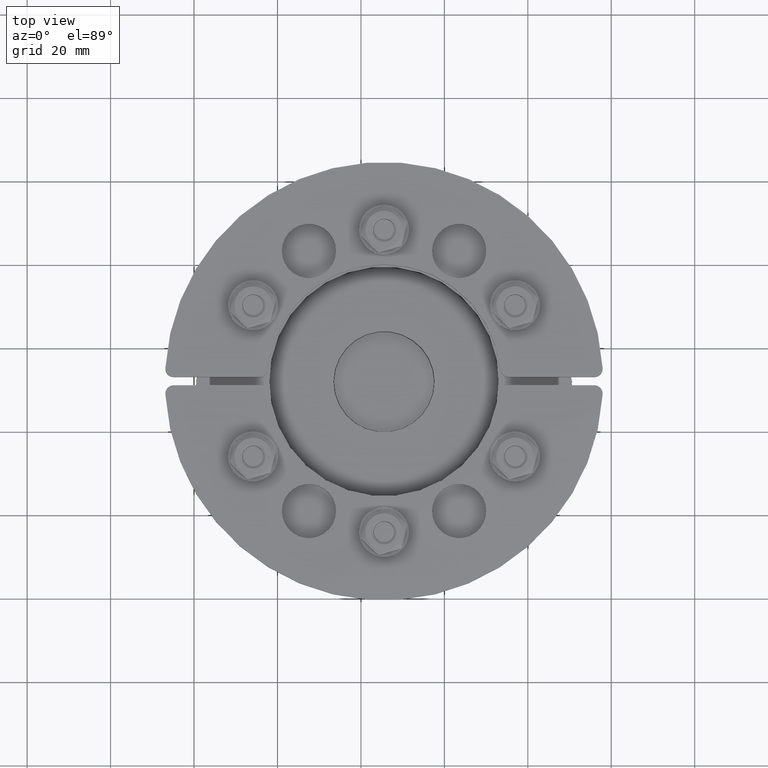
[diagram: clean part render]
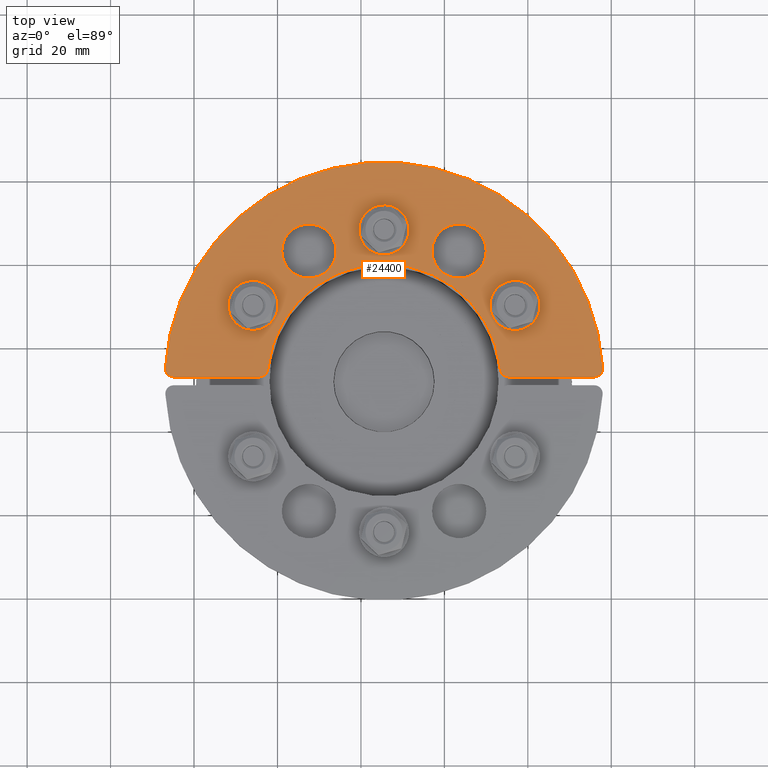
[diagram: same view with one face highlighted and labeled with its STEP entity id]
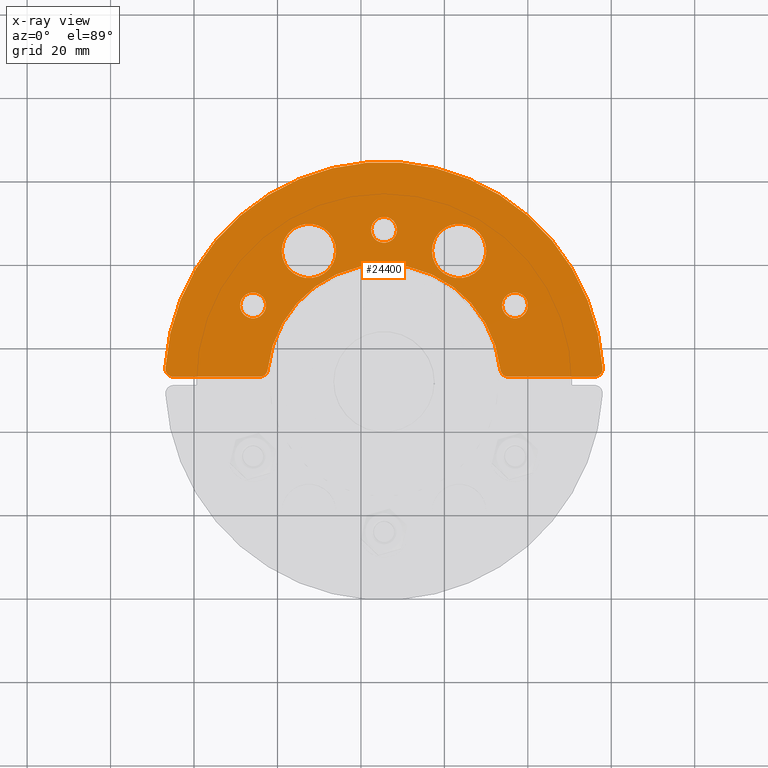
[diagram: x-ray of the same camera — body ghosted, the highlighted face saturated]
A machine part, top view. The second image highlights one B-rep face of the part: STEP entity #24400.
The next image is the same camera in x-ray: the body ghosted, the highlighted face saturated — about 0% of this face is hidden behind the body in this view.
In plain terms, the highlighted planar face has unit normal (0, -0, 1).
Its self-contained STEP definition (entity closure, byte-faithful):
#24188=CARTESIAN_POINT('',(-11.500000000000007,31.176914536239778,0.0));
#24189=VERTEX_POINT('',#24188);
#24190=CARTESIAN_POINT('',(-18.000000000000011,31.176914536239778,0.0));
#24191=DIRECTION('',(0.0,0.0,-1.0));
#24192=DIRECTION('',(-1.0,0.0,0.0));
#24193=AXIS2_PLACEMENT_3D('',#24190,#24191,#24192);
#24194=CIRCLE('',#24193,6.5);
#24195=EDGE_CURVE('',#24189,#24189,#24194,.T.);
#24216=CARTESIAN_POINT('',(24.499999999999993,31.176914536239792,0.0));
#24217=VERTEX_POINT('',#24216);
#24218=CARTESIAN_POINT('',(17.999999999999993,31.176914536239792,0.0));
#24219=DIRECTION('',(0.0,0.0,-1.0));
#24220=DIRECTION('',(-1.0,0.0,0.0));
#24221=AXIS2_PLACEMENT_3D('',#24218,#24219,#24220);
#24222=CIRCLE('',#24221,6.5);
#24223=EDGE_CURVE('',#24217,#24217,#24222,.T.);
#24244=CARTESIAN_POINT('',(52.407280147416166,3.118811881188124,0.0));
#24245=VERTEX_POINT('',#24244);
#24252=CARTESIAN_POINT('',(50.410812332276492,1.000000000000002,0.0));
#24253=VERTEX_POINT('',#24252);
#24254=CARTESIAN_POINT('',(50.410812332276492,3.000000000000004,0.0));
#24255=DIRECTION('',(0.0,0.0,-1.0));
#24256=DIRECTION('',(0.727806959500274,-0.685782056999866,0.0));
#24257=AXIS2_PLACEMENT_3D('',#24254,#24255,#24256);
#24258=CIRCLE('',#24257,2.0);
#24259=EDGE_CURVE('',#24245,#24253,#24258,.T.);
#24276=CARTESIAN_POINT('',(29.8496231131986,1.000000000000002,0.0));
#24277=VERTEX_POINT('',#24276);
#24278=CARTESIAN_POINT('',(50.410812332276485,1.000000000000002,0.0));
#24279=DIRECTION('',(-1.0,0.0,0.0));
#24280=VECTOR('',#24279,20.561189219077889);
#24281=LINE('',#24278,#24280);
#24282=EDGE_CURVE('',#24253,#24277,#24281,.T.);
#24301=CARTESIAN_POINT('',(1.808841E-014,22.732974089263401,0.0));
#24302=DIRECTION('',(0.0,0.0,1.0));
#24303=DIRECTION('',(1.0,0.0,0.0));
#24304=AXIS2_PLACEMENT_3D('',#24301,#24302,#24303);
#24305=PLANE('',#24304);
#24306=ORIENTED_EDGE('',*,*,#24259,.F.);
#24307=CARTESIAN_POINT('',(-52.407280147416166,3.118811881188113,0.0));
#24308=VERTEX_POINT('',#24307);
#24309=CARTESIAN_POINT('',(0.0,0.0,0.0));
#24310=DIRECTION('',(0.0,0.0,-1.0));
#24311=DIRECTION('',(-0.999818577647273,-0.019047619047619,0.0));
#24312=AXIS2_PLACEMENT_3D('',#24309,#24310,#24311);
#24313=CIRCLE('',#24312,52.499999999999993);
#24314=EDGE_CURVE('',#24308,#24245,#24313,.T.);
#24315=ORIENTED_EDGE('',*,*,#24314,.F.);
#24316=CARTESIAN_POINT('',(-50.4108123322765,0.999999999999994,0.0));
#24317=VERTEX_POINT('',#24316);
#24318=CARTESIAN_POINT('',(-50.4108123322765,2.999999999999994,0.0));
#24319=DIRECTION('',(0.0,0.0,-1.0));
#24320=DIRECTION('',(-0.727806959500274,-0.685782056999866,0.0));
#24321=AXIS2_PLACEMENT_3D('',#24318,#24319,#24320);
#24322=CIRCLE('',#24321,2.0);
#24323=EDGE_CURVE('',#24317,#24308,#24322,.T.);
#24324=ORIENTED_EDGE('',*,*,#24323,.F.);
#24325=CARTESIAN_POINT('',(-29.849623113198597,0.999999999999996,0.0));
#24326=VERTEX_POINT('',#24325);
#24327=CARTESIAN_POINT('',(-29.849623113198597,0.999999999999996,0.0));
#24328=DIRECTION('',(-1.0,0.0,0.0));
#24329=VECTOR('',#24328,20.561189219077903);
#24330=LINE('',#24327,#24329);
#24331=EDGE_CURVE('',#24326,#24317,#24330,.T.);
#24332=ORIENTED_EDGE('',*,*,#24331,.F.);
#24333=CARTESIAN_POINT('',(-27.859648238985351,2.799999999999997,0.0));
#24334=VERTEX_POINT('',#24333);
#24335=CARTESIAN_POINT('',(-29.849623113198597,2.999999999999997,0.0));
#24336=DIRECTION('',(0.0,0.0,-1.0));
#24337=DIRECTION('',(0.670820393249937,-0.741619848709566,0.0));
#24338=AXIS2_PLACEMENT_3D('',#24335,#24336,#24337);
#24339=CIRCLE('',#24338,2.0);
#24340=EDGE_CURVE('',#24334,#24326,#24339,.T.);
#24341=ORIENTED_EDGE('',*,*,#24340,.F.);
#24342=CARTESIAN_POINT('',(27.859648238985351,2.800000000000002,0.0));
#24343=VERTEX_POINT('',#24342);
#24344=CARTESIAN_POINT('',(0.0,0.0,0.0));
#24345=DIRECTION('',(0.0,0.0,1.0));
#24346=DIRECTION('',(0.999362041402373,0.035714285714286,0.0));
#24347=AXIS2_PLACEMENT_3D('',#24344,#24345,#24346);
#24348=CIRCLE('',#24347,27.999999999999989);
#24349=EDGE_CURVE('',#24343,#24334,#24348,.T.);
#24350=ORIENTED_EDGE('',*,*,#24349,.F.);
#24351=CARTESIAN_POINT('',(29.8496231131986,3.000000000000003,0.0));
#24352=DIRECTION('',(0.0,0.0,-1.0));
#24353=DIRECTION('',(-0.670820393249938,-0.741619848709565,0.0));
#24354=AXIS2_PLACEMENT_3D('',#24351,#24352,#24353);
#24355=CIRCLE('',#24354,2.0);
#24356=EDGE_CURVE('',#24277,#24343,#24355,.T.);
#24357=ORIENTED_EDGE('',*,*,#24356,.F.);
#24358=ORIENTED_EDGE('',*,*,#24282,.F.);
#24359=EDGE_LOOP('',(#24306,#24315,#24324,#24332,#24341,#24350,#24357,#24358));
#24360=FACE_OUTER_BOUND('',#24359,.T.);
#24361=ORIENTED_EDGE('',*,*,#24195,.T.);
#24362=EDGE_LOOP('',(#24361));
#24363=FACE_BOUND('',#24362,.T.);
#24364=ORIENTED_EDGE('',*,*,#24223,.T.);
#24365=EDGE_LOOP('',(#24364));
#24366=FACE_BOUND('',#24365,.T.);
#24367=CARTESIAN_POINT('',(-28.293420887185896,18.125000000000014,0.0));
#24368=VERTEX_POINT('',#24367);
#24369=CARTESIAN_POINT('',(-31.393420887185894,18.125000000000014,0.0));
#24370=DIRECTION('',(0.0,0.0,-1.0));
#24371=DIRECTION('',(-1.0,0.0,0.0));
#24372=AXIS2_PLACEMENT_3D('',#24369,#24370,#24371);
#24373=CIRCLE('',#24372,3.100000000000001);
#24374=EDGE_CURVE('',#24368,#24368,#24373,.T.);
#24375=ORIENTED_EDGE('',*,*,#24374,.T.);
#24376=EDGE_LOOP('',(#24375));
#24377=FACE_BOUND('',#24376,.T.);
#24378=CARTESIAN_POINT('',(34.493420887185898,18.125000000000004,0.0));
#24379=VERTEX_POINT('',#24378);
#24380=CARTESIAN_POINT('',(31.393420887185897,18.125000000000004,0.0));
#24381=DIRECTION('',(0.0,0.0,-1.0));
#24382=DIRECTION('',(-1.0,0.0,0.0));
#24383=AXIS2_PLACEMENT_3D('',#24380,#24381,#24382);
#24384=CIRCLE('',#24383,3.100000000000001);
#24385=EDGE_CURVE('',#24379,#24379,#24384,.T.);
#24386=ORIENTED_EDGE('',*,*,#24385,.T.);
#24387=EDGE_LOOP('',(#24386));
#24388=FACE_BOUND('',#24387,.T.);
#24389=CARTESIAN_POINT('',(3.100000000000003,36.25,0.0));
#24390=VERTEX_POINT('',#24389);
#24391=CARTESIAN_POINT('',(2.505113E-015,36.25,0.0));
#24392=DIRECTION('',(0.0,0.0,-1.0));
#24393=DIRECTION('',(-1.0,0.0,0.0));
#24394=AXIS2_PLACEMENT_3D('',#24391,#24392,#24393);
#24395=CIRCLE('',#24394,3.100000000000001);
#24396=EDGE_CURVE('',#24390,#24390,#24395,.T.);
#24397=ORIENTED_EDGE('',*,*,#24396,.T.);
#24398=EDGE_LOOP('',(#24397));
#24399=FACE_BOUND('',#24398,.T.);
#24400=ADVANCED_FACE('',(#24360,#24363,#24366,#24377,#24388,#24399),#24305,.T.);